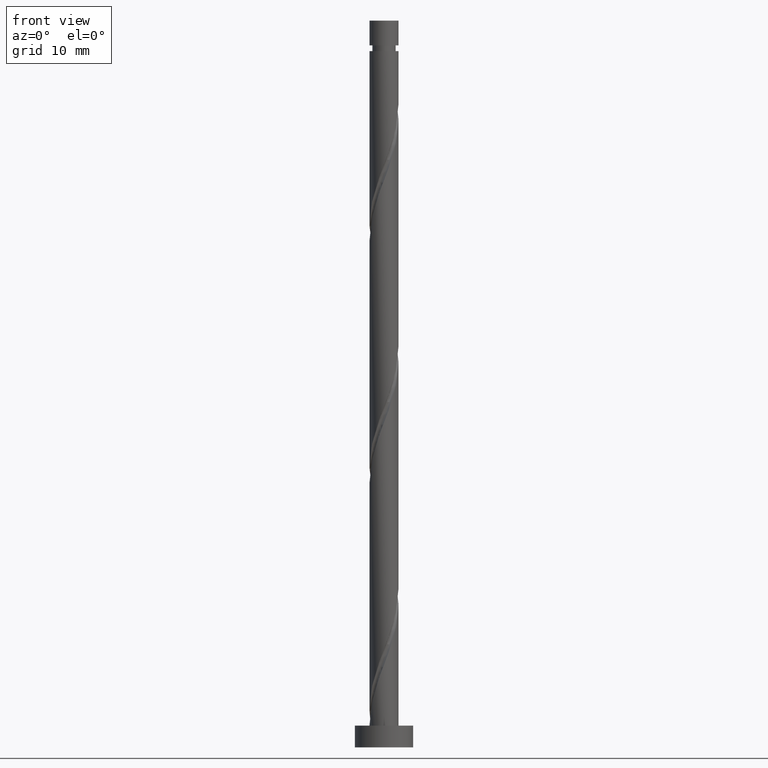
[diagram: clean part render]
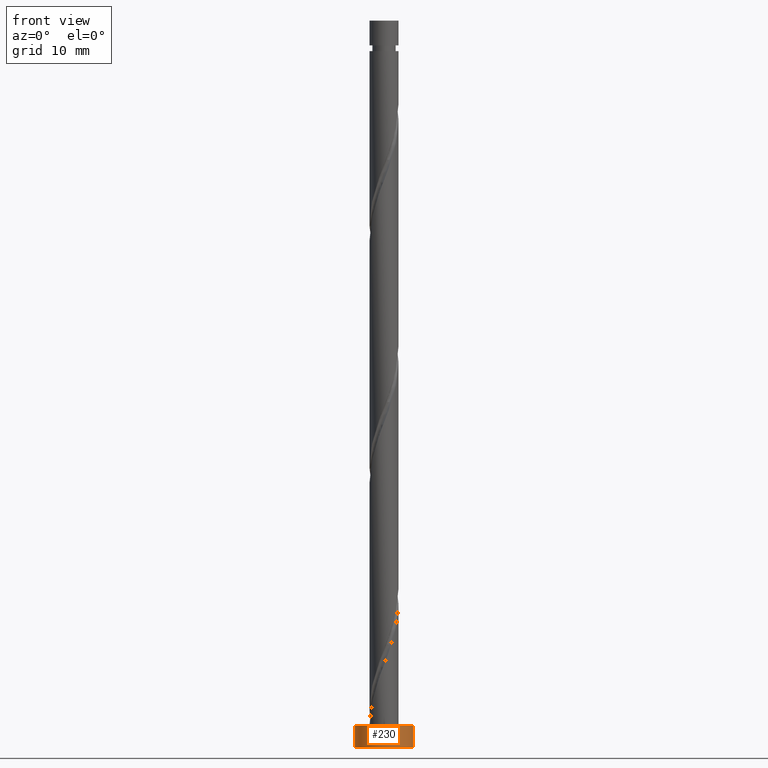
[diagram: same view with one face highlighted and labeled with its STEP entity id]
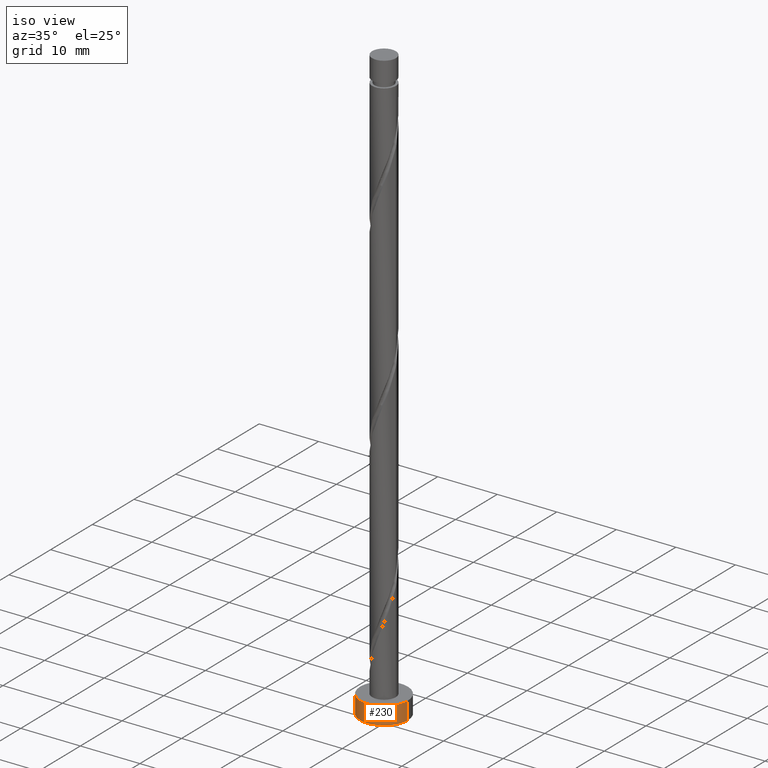
[diagram: same view with one face highlighted and labeled with its STEP entity id]
A machine part, front view. The second image highlights one B-rep face of the part: STEP entity #230.
A second angle (iso view) of the same face is appended — the face is thin or edge-on in the first view.
In plain terms, the highlighted cylindrical surface (edge-blend (fillet) strip) has radius 4 mm, axis along (-0, -0, -1).
Its self-contained STEP definition (entity closure, byte-faithful):
#23 = DIRECTION ( 'NONE',  ( -0.000000000000000000, -0.000000000000000000, -1.000000000000000000 ) ) ;
#122 = LINE ( 'NONE', #1975, #1171 ) ;
#206 = EDGE_CURVE ( 'NONE', #453, #286, #122, .T. ) ;
#230 = ADVANCED_FACE ( 'NONE', ( #1886 ), #1185, .T. ) ;
#244 = ORIENTED_EDGE ( 'NONE', *, *, #1328, .F. ) ;
#271 = DIRECTION ( 'NONE',  ( -0.000000000000000000, -0.000000000000000000, -1.000000000000000000 ) ) ;
#278 = AXIS2_PLACEMENT_3D ( 'NONE', #1835, #422, #961 ) ;
#286 = VERTEX_POINT ( 'NONE', #1230 ) ;
#359 = CARTESIAN_POINT ( 'NONE',  ( 0.000000000000000000, 0.000000000000000000, 3.000000000000000000 ) ) ;
#363 = CARTESIAN_POINT ( 'NONE',  ( -4.000000000000000000, 0.000000000000000000, 3.000000000000000000 ) ) ;
#370 = DIRECTION ( 'NONE',  ( -0.000000000000000000, -0.000000000000000000, -1.000000000000000000 ) ) ;
#395 = ORIENTED_EDGE ( 'NONE', *, *, #1100, .T. ) ;
#422 = DIRECTION ( 'NONE',  ( 0.000000000000000000, 0.000000000000000000, 1.000000000000000000 ) ) ;
#450 = CIRCLE ( 'NONE', #278, 4.000000000000000000 ) ;
#453 = VERTEX_POINT ( 'NONE', #363 ) ;
#516 = AXIS2_PLACEMENT_3D ( 'NONE', #359, #370, #1388 ) ;
#725 = CARTESIAN_POINT ( 'NONE',  ( 4.000000000000000000, 4.898587196589412829E-16, 0.000000000000000000 ) ) ;
#782 = CARTESIAN_POINT ( 'NONE',  ( 4.000000000000000000, 4.898587196589412829E-16, 3.000000000000000000 ) ) ;
#892 = DIRECTION ( 'NONE',  ( 1.000000000000000000, 0.000000000000000000, 0.000000000000000000 ) ) ;
#961 = DIRECTION ( 'NONE',  ( 1.000000000000000000, 0.000000000000000000, 0.000000000000000000 ) ) ;
#998 = ORIENTED_EDGE ( 'NONE', *, *, #1465, .F. ) ;
#1100 = EDGE_CURVE ( 'NONE', #286, #1244, #2154, .T. ) ;
#1171 = VECTOR ( 'NONE', #23, 1000.000000000000000 ) ;
#1174 = VECTOR ( 'NONE', #271, 1000.000000000000000 ) ;
#1185 = CYLINDRICAL_SURFACE ( 'NONE', #516, 4.000000000000000000 ) ;
#1230 = CARTESIAN_POINT ( 'NONE',  ( -4.000000000000000000, 0.000000000000000000, 0.000000000000000000 ) ) ;
#1242 = CARTESIAN_POINT ( 'NONE',  ( 4.000000000000000000, 4.898587196589412829E-16, 3.000000000000000000 ) ) ;
#1244 = VERTEX_POINT ( 'NONE', #725 ) ;
#1273 = DIRECTION ( 'NONE',  ( 0.000000000000000000, 0.000000000000000000, 1.000000000000000000 ) ) ;
#1294 = ORIENTED_EDGE ( 'NONE', *, *, #206, .T. ) ;
#1310 = LINE ( 'NONE', #782, #1174 ) ;
#1328 = EDGE_CURVE ( 'NONE', #1550, #1244, #1310, .T. ) ;
#1388 = DIRECTION ( 'NONE',  ( -1.000000000000000000, 0.000000000000000000, 0.000000000000000000 ) ) ;
#1465 = EDGE_CURVE ( 'NONE', #453, #1550, #450, .T. ) ;
#1550 = VERTEX_POINT ( 'NONE', #1242 ) ;
#1782 = CARTESIAN_POINT ( 'NONE',  ( 0.000000000000000000, 0.000000000000000000, 0.000000000000000000 ) ) ;
#1835 = CARTESIAN_POINT ( 'NONE',  ( 0.000000000000000000, 0.000000000000000000, 3.000000000000000000 ) ) ;
#1852 = AXIS2_PLACEMENT_3D ( 'NONE', #1782, #1273, #892 ) ;
#1886 = FACE_OUTER_BOUND ( 'NONE', #1936, .T. ) ;
#1936 = EDGE_LOOP ( 'NONE', ( #244, #998, #1294, #395 ) ) ;
#1975 = CARTESIAN_POINT ( 'NONE',  ( -4.000000000000000000, 0.000000000000000000, 3.000000000000000000 ) ) ;
#2154 = CIRCLE ( 'NONE', #1852, 4.000000000000000000 ) ;